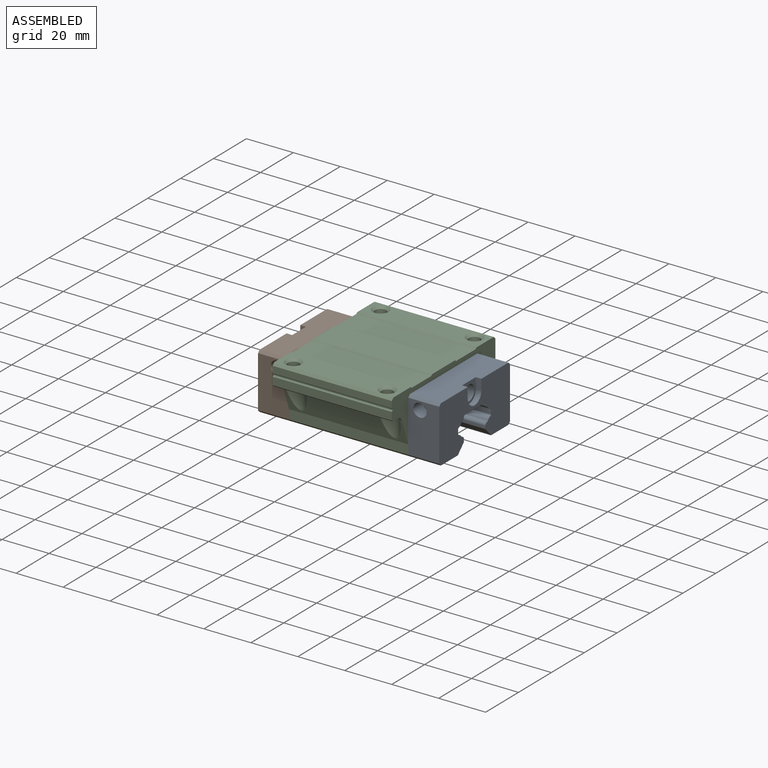
[diagram: assembled view]
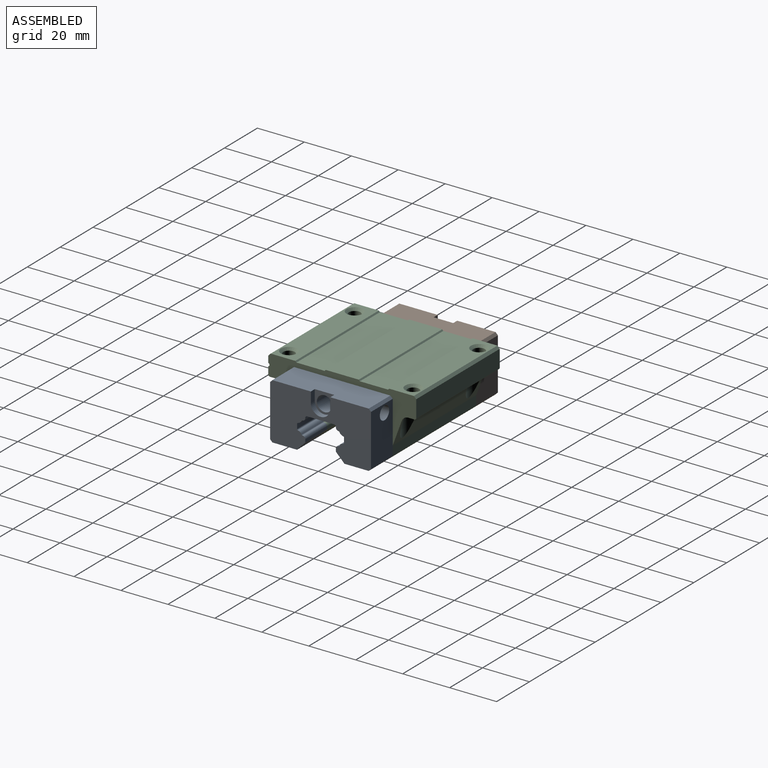
[diagram: assembled view, second angle]
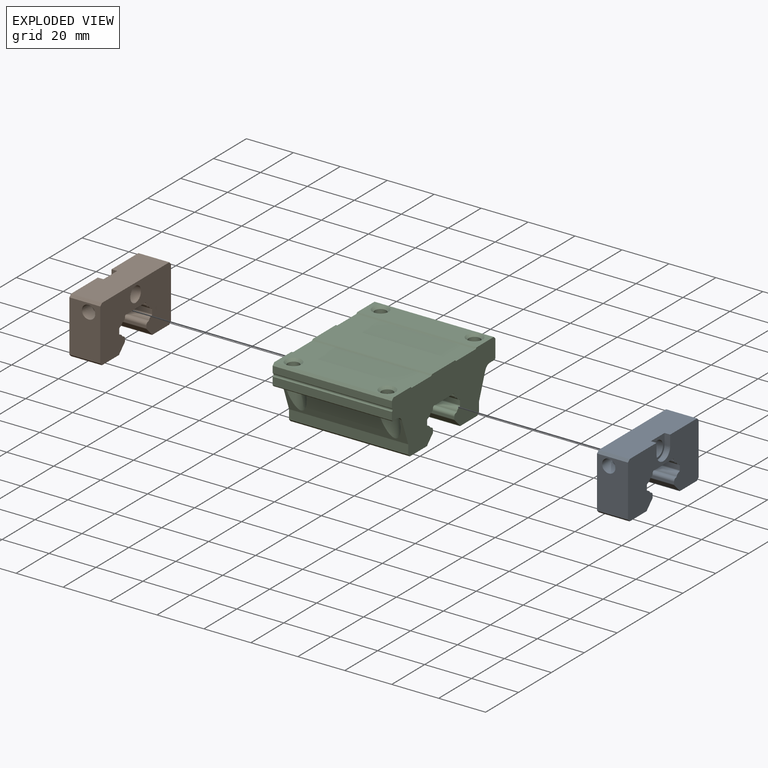
[diagram: exploded view]
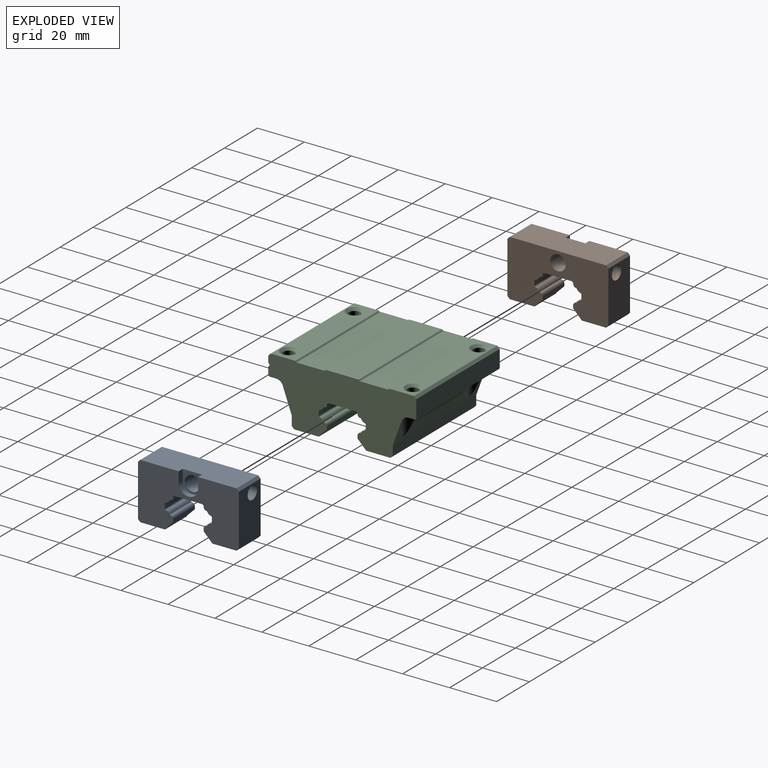
[diagram: exploded view, second angle]
ASSEMBLY  parts=3 mates=2
PART A: 51 faces, bbox 13.2x43x24 mm
  f0: cylinder r=3.25mm len=10.8mm, axis (-1,0,0), area 220.5mm2, adj f1,f2
  f1: plane 43x24mm, normal (-1,0,0), area 768.7mm2, adj f0,f3,f4,f5,f6,f7,f8,f9
  f2: plane 8.66x8.3mm, normal (1,0,0), area 31.2mm2, adj f0,f22,f43,f44,f45
  f3: plane 13.2x0.5mm, normal (0,0.71,-0.71), area 9.3mm2, adj f1,f4,f42,f46
  f4: plane 13.2x0.4mm, normal (0,1,0), area 5.3mm2, adj f1,f3,f5,f46
  f5: cylinder r=1.2mm len=13.2mm, axis (1,0,0), area 24.4mm2, adj f1,f4,f6,f46
  f6: cylinder r=0.5mm len=13.2mm, axis (1,0,0), area 7.3mm2, adj f1,f5,f7,f46
  f7: cylinder r=2.1mm len=13.2mm, axis (1,0,0), area 26.1mm2, adj f1,f6,f8,f46
  f8: cylinder r=0.5mm len=13.2mm, axis (1,0,0), area 9.1mm2, adj f1,f7,f9,f46
  f9: plane 13.2x1.9mm, normal (0,1,0), area 25mm2, adj f1,f8,f10,f46
  f10: cylinder r=0.5mm len=13.2mm, axis (1,0,0), area 9.1mm2, adj f1,f9,f11,f46
  f11: cylinder r=2.1mm len=13.2mm, axis (1,0,0), area 26.1mm2, adj f1,f10,f12,f46
  f12: cylinder r=0.5mm len=13.2mm, axis (1,0,0), area 7.3mm2, adj f1,f11,f13,f46
  f13: cylinder r=1.2mm len=13.2mm, axis (1,0,0), area 24.4mm2, adj f1,f12,f14,f46
  f14: plane 13.2x0.99mm, normal (0,1,0), area 13.1mm2, adj f1,f13,f15,f46
  f15: cylinder r=0.5mm len=13.2mm, axis (1,0,0), area 5.2mm2, adj f1,f14,f16,f46
  f16: plane 13.2x3.21mm, normal (0,0.71,-0.71), area 59.9mm2, adj f1,f15,f17,f46
  f17: cylinder r=0.5mm len=13.2mm, axis (1,0,0), area 5.1mm2, adj f1,f16,f18,f46
  f18: plane 13.2x10.5mm, normal (0,0,-1), area 138.6mm2, adj f1,f17,f19,f46
  f19: plane 13.2x1mm, normal (0,-0.71,-0.71), area 18.7mm2, adj f1,f18,f20,f46
  f20: plane 22x13.2mm, normal (0,-1,0), area 264.9mm2, adj f1,f19,f21,f46,f47
  f21: plane 13.2x1mm, normal (0,-0.71,0.71), area 18.7mm2, adj f1,f20,f22,f46
  f22: plane 41x13.2mm, normal (0,0,1), area 521.3mm2, adj f1,f2,f21,f23,f44,f45,f46
  f23: plane 13.2x1mm, normal (0,0.71,0.71), area 18.7mm2, adj f1,f22,f24,f46
  f24: plane 22x13.2mm, normal (0,1,0), area 264.9mm2, adj f1,f23,f25,f46,f48
  f25: plane 13.2x1mm, normal (0,0.71,-0.71), area 18.7mm2, adj f1,f24,f26,f46
  f26: plane 13.2x10.5mm, normal (0,0,-1), area 138.6mm2, adj f1,f25,f27,f46
  f27: cylinder r=0.5mm len=13.2mm, axis (1,0,0), area 5.1mm2, adj f1,f26,f28,f46
  f28: plane 13.2x3.21mm, normal (0,-0.71,-0.71), area 59.9mm2, adj f1,f27,f29,f46
  f29: cylinder r=0.5mm len=13.2mm, axis (1,0,0), area 5.2mm2, adj f1,f28,f30,f46
  f30: plane 13.2x0.99mm, normal (0,-1,0), area 13.1mm2, adj f1,f29,f31,f46
  f31: cylinder r=1.2mm len=13.2mm, axis (1,0,0), area 24.4mm2, adj f1,f30,f32,f46
  f32: cylinder r=0.5mm len=13.2mm, axis (1,0,0), area 7.3mm2, adj f1,f31,f33,f46
  f33: cylinder r=2.1mm len=13.2mm, axis (1,0,0), area 26.1mm2, adj f1,f32,f34,f46
  f34: cylinder r=0.5mm len=13.2mm, axis (1,0,0), area 9.1mm2, adj f1,f33,f35,f46
  f35: plane 13.2x1.9mm, normal (0,-1,0), area 25mm2, adj f1,f34,f36,f46
  f36: cylinder r=0.5mm len=13.2mm, axis (1,0,0), area 9.1mm2, adj f1,f35,f37,f46
  f37: cylinder r=2.1mm len=13.2mm, axis (1,0,0), area 26.1mm2, adj f1,f36,f38,f46
  f38: cylinder r=0.5mm len=13.2mm, axis (1,0,0), area 7.3mm2, adj f1,f37,f39,f46
  f39: cylinder r=1.2mm len=13.2mm, axis (1,0,0), area 24.4mm2, adj f1,f38,f40,f46
  f40: plane 13.2x0.4mm, normal (0,-1,0), area 5.3mm2, adj f1,f39,f41,f46
  f41: plane 13.2x0.5mm, normal (0,-0.71,-0.71), area 9.3mm2, adj f1,f40,f42,f46
  f42: plane 13.2x12mm, normal (0,0,-1), area 158.4mm2, adj f1,f3,f41,f46
  f43: cylinder r=4.15mm len=8.3mm, axis (1,0,0), area 31.3mm2, adj f2,f44,f45,f46
  f44: plane 4.5x2.4mm, normal (0,-1,0), area 10.8mm2, adj f2,f22,f43,f46
  f45: plane 4.5x2.4mm, normal (0,1,0), area 10.8mm2, adj f2,f22,f43,f46
  f46: plane 43x24mm, normal (1,0,0), area 737.5mm2, adj f3,f4,f5,f6,f7,f8,f9,f10
  f47: cylinder r=2.85mm len=6mm, axis (0,1,0), area 107.4mm2, adj f20,f49
  f48: cylinder r=2.85mm len=6mm, axis (0,-1,0), area 107.4mm2, adj f24,f50
  f49: plane 5.7x5.7mm, normal (0,-1,0), area 25.5mm2, adj f47
  f50: plane 5.7x5.7mm, normal (0,1,0), area 25.5mm2, adj f48
PART B: 51 faces, bbox 13.2x43x24 mm
  f0: cylinder r=3.25mm len=10.8mm, axis (1,0,0), area 220.5mm2, adj f1,f2
  f1: plane 43x24mm, normal (1,0,0), area 768.7mm2, adj f0,f3,f4,f5,f6,f7,f8,f9
  f2: plane 8.66x8.3mm, normal (-1,0,0), area 31.2mm2, adj f0,f23,f43,f44,f45
  f3: plane 13.2x12mm, normal (0,0,-1), area 158.4mm2, adj f1,f4,f42,f46
  f4: plane 13.2x0.5mm, normal (0,-0.71,-0.71), area 9.3mm2, adj f1,f3,f5,f46
  f5: plane 13.2x0.4mm, normal (0,-1,0), area 5.3mm2, adj f1,f4,f6,f46
  f6: cylinder r=1.2mm len=13.2mm, axis (1,0,0), area 24.4mm2, adj f1,f5,f7,f46
  f7: cylinder r=0.5mm len=13.2mm, axis (1,0,0), area 7.3mm2, adj f1,f6,f8,f46
  f8: cylinder r=2.1mm len=13.2mm, axis (1,0,0), area 26.1mm2, adj f1,f7,f9,f46
  f9: cylinder r=0.5mm len=13.2mm, axis (1,0,0), area 9.1mm2, adj f1,f8,f10,f46
  f10: plane 13.2x1.9mm, normal (0,-1,0), area 25mm2, adj f1,f9,f11,f46
  f11: cylinder r=0.5mm len=13.2mm, axis (1,0,0), area 9.1mm2, adj f1,f10,f12,f46
  f12: cylinder r=2.1mm len=13.2mm, axis (1,0,0), area 26.1mm2, adj f1,f11,f13,f46
  f13: cylinder r=0.5mm len=13.2mm, axis (1,0,0), area 7.3mm2, adj f1,f12,f14,f46
  f14: cylinder r=1.2mm len=13.2mm, axis (1,0,0), area 24.4mm2, adj f1,f13,f15,f46
  f15: plane 13.2x0.99mm, normal (0,-1,0), area 13.1mm2, adj f1,f14,f16,f46
  f16: cylinder r=0.5mm len=13.2mm, axis (1,0,0), area 5.2mm2, adj f1,f15,f17,f46
  f17: plane 13.2x3.21mm, normal (0,-0.71,-0.71), area 59.9mm2, adj f1,f16,f18,f46
  f18: cylinder r=0.5mm len=13.2mm, axis (1,0,0), area 5.1mm2, adj f1,f17,f19,f46
  f19: plane 13.2x10.5mm, normal (0,0,-1), area 138.6mm2, adj f1,f18,f20,f46
  f20: plane 13.2x1mm, normal (0,0.71,-0.71), area 18.7mm2, adj f1,f19,f21,f46
  f21: plane 22x13.2mm, normal (0,1,0), area 264.9mm2, adj f1,f20,f22,f46,f47
  f22: plane 13.2x1mm, normal (0,0.71,0.71), area 18.7mm2, adj f1,f21,f23,f46
  f23: plane 41x13.2mm, normal (0,0,1), area 521.3mm2, adj f1,f2,f22,f24,f43,f44,f46
  f24: plane 13.2x1mm, normal (0,-0.71,0.71), area 18.7mm2, adj f1,f23,f25,f46
  f25: plane 22x13.2mm, normal (0,-1,0), area 264.9mm2, adj f1,f24,f26,f46,f48
  f26: plane 13.2x1mm, normal (0,-0.71,-0.71), area 18.7mm2, adj f1,f25,f27,f46
  f27: plane 13.2x10.5mm, normal (0,0,-1), area 138.6mm2, adj f1,f26,f28,f46
  f28: cylinder r=0.5mm len=13.2mm, axis (1,0,0), area 5.1mm2, adj f1,f27,f29,f46
  f29: plane 13.2x3.21mm, normal (0,0.71,-0.71), area 59.9mm2, adj f1,f28,f30,f46
  f30: cylinder r=0.5mm len=13.2mm, axis (1,0,0), area 5.2mm2, adj f1,f29,f31,f46
  f31: plane 13.2x0.99mm, normal (0,1,0), area 13.1mm2, adj f1,f30,f32,f46
  f32: cylinder r=1.2mm len=13.2mm, axis (1,0,0), area 24.4mm2, adj f1,f31,f33,f46
  f33: cylinder r=0.5mm len=13.2mm, axis (1,0,0), area 7.3mm2, adj f1,f32,f34,f46
  f34: cylinder r=2.1mm len=13.2mm, axis (1,0,0), area 26.1mm2, adj f1,f33,f35,f46
  f35: cylinder r=0.5mm len=13.2mm, axis (1,0,0), area 9.1mm2, adj f1,f34,f36,f46
  f36: plane 13.2x1.9mm, normal (0,1,0), area 25mm2, adj f1,f35,f37,f46
  f37: cylinder r=0.5mm len=13.2mm, axis (1,0,0), area 9.1mm2, adj f1,f36,f38,f46
  f38: cylinder r=2.1mm len=13.2mm, axis (1,0,0), area 26.1mm2, adj f1,f37,f39,f46
  f39: cylinder r=0.5mm len=13.2mm, axis (1,0,0), area 7.3mm2, adj f1,f38,f40,f46
  f40: cylinder r=1.2mm len=13.2mm, axis (1,0,0), area 24.4mm2, adj f1,f39,f41,f46
  f41: plane 13.2x0.4mm, normal (0,1,0), area 5.3mm2, adj f1,f40,f42,f46
  f42: plane 13.2x0.5mm, normal (0,0.71,-0.71), area 9.3mm2, adj f1,f3,f41,f46
  f43: plane 4.5x2.4mm, normal (0,1,0), area 10.8mm2, adj f2,f23,f45,f46
  f44: plane 4.5x2.4mm, normal (0,-1,0), area 10.8mm2, adj f2,f23,f45,f46
  f45: cylinder r=4.15mm len=8.3mm, axis (1,0,0), area 31.3mm2, adj f2,f43,f44,f46
  f46: plane 43x24mm, normal (-1,0,0), area 737.5mm2, adj f3,f4,f5,f6,f7,f8,f9,f10
  f47: cylinder r=2.85mm len=6mm, axis (0,-1,0), area 107.4mm2, adj f21,f49
  f48: cylinder r=2.85mm len=6mm, axis (0,1,0), area 107.4mm2, adj f25,f50
  f49: plane 5.7x5.7mm, normal (0,1,0), area 25.5mm2, adj f47
  f50: plane 5.7x5.7mm, normal (0,-1,0), area 25.5mm2, adj f48
PART C: 86 faces, bbox 50.8x63x26.5 mm
  f0: plane 50.8x12mm, normal (0,0,-1), area 609.6mm2, adj f1,f2,f3,f85
  f1: plane 50.8x0.5mm, normal (0,0.71,-0.71), area 35.9mm2, adj f0,f2,f3,f4
  f2: plane 63x26.5mm, normal (1,0,0), area 1134.6mm2, adj f0,f1,f4,f5,f6,f7,f8,f9
  f3: plane 63x26.5mm, normal (-1,0,0), area 1134.6mm2, adj f0,f1,f4,f5,f6,f7,f8,f10
  f4: plane 50.8x0.4mm, normal (0,1,0), area 20.3mm2, adj f1,f2,f3,f72
  f5: plane 50.8x10.5mm, normal (0,0,-1), area 533.4mm2, adj f2,f3,f6,f58
  f6: plane 50.8x1mm, normal (0,0.71,-0.71), area 71.8mm2, adj f2,f3,f5,f7
  f7: plane 50.8x4mm, normal (0,1,0), area 203.2mm2, adj f2,f3,f6,f8
  f8: plane 50.8x10.53mm, normal (0,0.94,-0.34), area 437.1mm2, adj f2,f3,f7,f9,f34,f35,f36,f57
  f9: cylinder r=3mm len=2.82mm, axis (1,0,0), area 3.1mm2, adj f2,f8,f10,f35,f37
  f10: plane 50.8x9.11mm, normal (0,0,-1), area 203.6mm2, adj f2,f3,f9,f11,f34,f35,f36,f37
  f11: plane 50.8x0.5mm, normal (0,0.71,-0.71), area 35.9mm2, adj f2,f3,f10,f12
  f12: plane 50.8x7.5mm, normal (0,1,0), area 381mm2, adj f2,f3,f11,f13
  f13: plane 50.8x1mm, normal (0,0.71,0.71), area 71.8mm2, adj f2,f3,f12,f14
  f14: plane 50.8x10.5mm, normal (0,0,1), area 458.2mm2, adj f2,f3,f13,f15,f49,f50
  f15: plane 50.8x0.5mm, normal (0,-0.71,0.71), area 35.9mm2, adj f2,f3,f14,f16
  f16: plane 50.8x12mm, normal (0,0,1), area 609.6mm2, adj f2,f3,f15,f17
  f17: plane 50.8x0.5mm, normal (0,0.71,0.71), area 35.9mm2, adj f2,f3,f16,f18
  f18: plane 50.8x14mm, normal (0,0,1), area 711.2mm2, adj f2,f3,f17,f19
  f19: plane 50.8x0.5mm, normal (0,-0.71,0.71), area 35.9mm2, adj f2,f3,f18,f20
  f20: plane 50.8x12mm, normal (0,0,1), area 609.6mm2, adj f2,f3,f19,f21
  f21: plane 50.8x0.5mm, normal (0,0.71,0.71), area 35.9mm2, adj f2,f3,f20,f22
  f22: plane 50.8x10.5mm, normal (0,0,1), area 458.2mm2, adj f2,f3,f21,f23,f47,f48
  f23: plane 50.8x1mm, normal (0,-0.71,0.71), area 71.8mm2, adj f2,f3,f22,f24
  f24: plane 50.8x2.83mm, normal (0,-1,0), area 143.7mm2, adj f2,f3,f23,f25
  f25: cylinder r=0.7mm len=50.8mm, axis (1,0,0), area 91.1mm2, adj f2,f3,f24,f26
  f26: plane 50.8x3.33mm, normal (0,-1,0), area 169.1mm2, adj f2,f3,f25,f27
  f27: plane 50.8x0.5mm, normal (0,-0.71,-0.71), area 35.9mm2, adj f2,f3,f26,f28
  f28: plane 50.8x9.11mm, normal (0,0,-1), area 203.6mm2, adj f2,f3,f27,f29,f38,f39,f40,f41
  f29: cylinder r=3mm len=2.82mm, axis (1,0,0), area 3.1mm2, adj f2,f28,f30,f41,f42
  f30: plane 50.8x10.53mm, normal (0,-0.94,-0.34), area 437.2mm2, adj f2,f3,f29,f31,f38,f42,f45,f56
  f31: plane 50.8x4mm, normal (0,-1,0), area 203.2mm2, adj f2,f3,f30,f32
  f32: plane 50.8x1mm, normal (0,-0.71,-0.71), area 71.8mm2, adj f2,f3,f31,f33
  f33: plane 50.8x10.5mm, normal (0,0,-1), area 533.4mm2, adj f2,f3,f32,f84
  f34: cylinder r=3mm len=31.1mm, axis (1,0,0), area 113.2mm2, adj f8,f10,f35,f36,f53,f55
  f35: cylinder r=4.6mm len=11.43mm, axis (0,0,1), area 100.4mm2, adj f8,f9,f10,f34,f37,f53
  f36: cylinder r=4.6mm len=11.43mm, axis (0,0,1), area 100.4mm2, adj f8,f10,f34,f54,f55,f57
  f37: plane 1.65x0.49mm, normal (-1,0,0), area 0.3mm2, adj f9,f10,f35
  f38: cylinder r=3mm len=31.1mm, axis (1,0,0), area 113.2mm2, adj f28,f30,f42,f43,f44,f45
  f39: cylinder r=2.46mm len=8mm, axis (0,0,-1), area 123.6mm2, adj f28,f48
  f40: cylinder r=2.46mm len=8mm, axis (0,0,-1), area 123.6mm2, adj f28,f47
  f41: plane 1.65x0.49mm, normal (-1,0,0), area 0.3mm2, adj f28,f29,f42
  f42: cylinder r=4.6mm len=11.42mm, axis (0,0,1), area 100.4mm2, adj f28,f29,f30,f38,f41,f43
  f43: plane 1.65x0.49mm, normal (1,0,0), area 0.3mm2, adj f28,f38,f42
  f44: plane 1.65x0.49mm, normal (-1,0,0), area 0.3mm2, adj f28,f38,f45
  f45: cylinder r=4.6mm len=11.42mm, axis (0,0,1), area 100.4mm2, adj f28,f30,f38,f44,f46,f56
  f46: plane 1.65x0.49mm, normal (1,0,0), area 0.3mm2, adj f28,f45,f56
  f47: cone r=1mm half-angle=45deg, axis (0,0,1), area 26.3mm2, adj f22,f40
  f48: cone r=1mm half-angle=45deg, axis (0,0,1), area 26.3mm2, adj f22,f39
  f49: cone r=1mm half-angle=45deg, axis (0,0,1), area 26.3mm2, adj f14,f51
  f50: cone r=1mm half-angle=45deg, axis (0,0,1), area 26.3mm2, adj f14,f52
  f51: cylinder r=2.46mm len=8mm, axis (0,0,-1), area 123.6mm2, adj f10,f49
  f52: cylinder r=2.46mm len=8mm, axis (0,0,-1), area 123.6mm2, adj f10,f50
  f53: plane 1.65x0.49mm, normal (1,0,0), area 0.3mm2, adj f10,f34,f35
  f54: plane 1.65x0.49mm, normal (1,0,0), area 0.3mm2, adj f10,f36,f57
  f55: plane 1.65x0.49mm, normal (-1,0,0), area 0.3mm2, adj f10,f34,f36
  f56: cylinder r=3mm len=2.82mm, axis (1,0,0), area 3.1mm2, adj f3,f28,f30,f45,f46
  f57: cylinder r=3mm len=2.82mm, axis (1,0,0), area 3.1mm2, adj f3,f8,f10,f36,f54
  f58: cylinder r=0.5mm len=50.8mm, axis (1,0,0), area 19.6mm2, adj f2,f3,f5,f59
  f59: plane 50.8x3.21mm, normal (0,-0.71,-0.71), area 230.4mm2, adj f2,f3,f58,f60
  f60: cylinder r=0.5mm len=50.8mm, axis (1,0,0), area 19.9mm2, adj f2,f3,f59,f61
  f61: plane 50.8x0.99mm, normal (0,-1,0), area 50.4mm2, adj f2,f3,f60,f62
  f62: cylinder r=1.2mm len=50.8mm, axis (1,0,0), area 93.7mm2, adj f2,f3,f61,f63
  f63: cylinder r=0.5mm len=50.8mm, axis (1,0,0), area 28mm2, adj f2,f3,f62,f64
  f64: cylinder r=2.1mm len=50.8mm, axis (1,0,0), area 100.4mm2, adj f2,f3,f63,f65
  f65: cylinder r=0.5mm len=50.8mm, axis (1,0,0), area 35mm2, adj f2,f3,f64,f66
  f66: plane 50.8x1.9mm, normal (0,-1,0), area 96.4mm2, adj f2,f3,f65,f67
  f67: cylinder r=0.5mm len=50.8mm, axis (1,0,0), area 35mm2, adj f2,f3,f66,f68
  f68: cylinder r=2.1mm len=50.8mm, axis (1,0,0), area 100.4mm2, adj f2,f3,f67,f69
  f69: cylinder r=0.5mm len=50.8mm, axis (1,0,0), area 28mm2, adj f2,f3,f68,f70
  f70: cylinder r=1.2mm len=50.8mm, axis (1,0,0), area 93.7mm2, adj f2,f3,f69,f71
  f71: plane 50.8x0.4mm, normal (0,-1,0), area 20.3mm2, adj f2,f3,f70,f85
  f72: cylinder r=1.2mm len=50.8mm, axis (1,0,0), area 93.7mm2, adj f2,f3,f4,f73
  f73: cylinder r=0.5mm len=50.8mm, axis (1,0,0), area 28mm2, adj f2,f3,f72,f74
  f74: cylinder r=2.1mm len=50.8mm, axis (1,0,0), area 100.4mm2, adj f2,f3,f73,f75
  f75: cylinder r=0.5mm len=50.8mm, axis (1,0,0), area 35mm2, adj f2,f3,f74,f76
  f76: plane 50.8x1.9mm, normal (0,1,0), area 96.4mm2, adj f2,f3,f75,f77
  f77: cylinder r=0.5mm len=50.8mm, axis (1,0,0), area 35mm2, adj f2,f3,f76,f78
  f78: cylinder r=2.1mm len=50.8mm, axis (1,0,0), area 100.4mm2, adj f2,f3,f77,f79
  f79: cylinder r=0.5mm len=50.8mm, axis (1,0,0), area 28mm2, adj f2,f3,f78,f80
  f80: cylinder r=1.2mm len=50.8mm, axis (1,0,0), area 93.7mm2, adj f2,f3,f79,f81
  f81: plane 50.8x0.99mm, normal (0,1,0), area 50.4mm2, adj f2,f3,f80,f82
  f82: cylinder r=0.5mm len=50.8mm, axis (1,0,0), area 19.9mm2, adj f2,f3,f81,f83
  f83: plane 50.8x3.21mm, normal (0,0.71,-0.71), area 230.4mm2, adj f2,f3,f82,f84
  f84: cylinder r=0.5mm len=50.8mm, axis (1,0,0), area 19.6mm2, adj f2,f3,f33,f83
  f85: plane 50.8x0.5mm, normal (0,-0.71,-0.71), area 35.9mm2, adj f0,f2,f3,f71
PLACE A t=(-26.27,-4.37,-0.56)mm
PLACE B t=(-26.27,-4.37,-0.56)mm
PLACE C t=(-26.27,-4.37,-0.56)mm
MATE fastened A.f1 <-> C.f2  axis (-1,0,0) through (-0.87,16.13,2.94)mm
MATE fastened B.f1 <-> C.f3  axis (1,0,0) through (-51.67,17.13,3.94)mm
